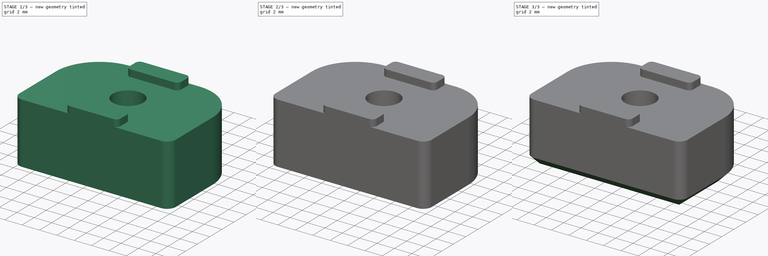
[diagram: build sequence overview — one tinted view per stage of 3, left to right]
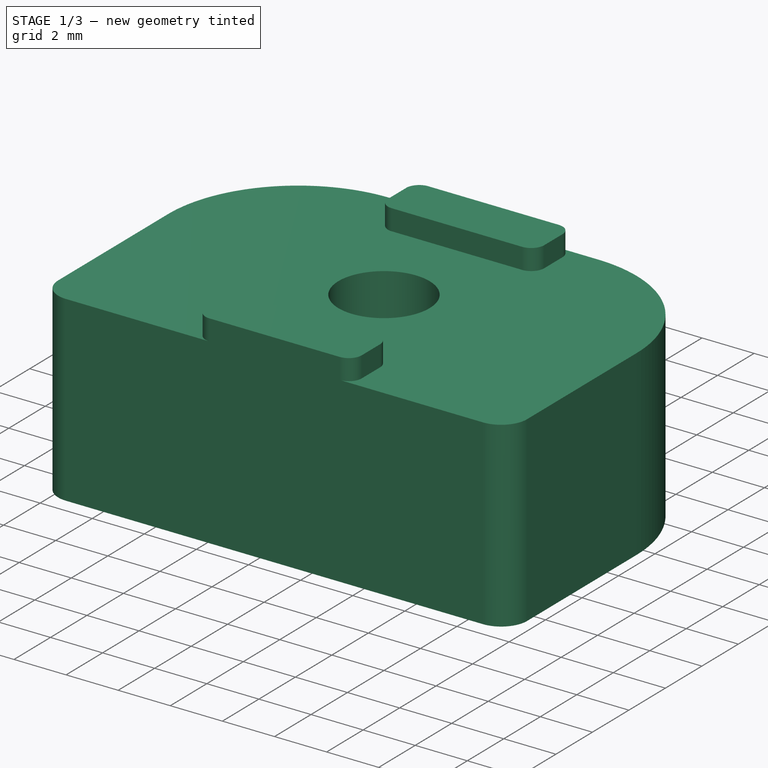
[diagram: stage 1 of 3 — iso view after this stage's code; geometry added in this stage tinted green]
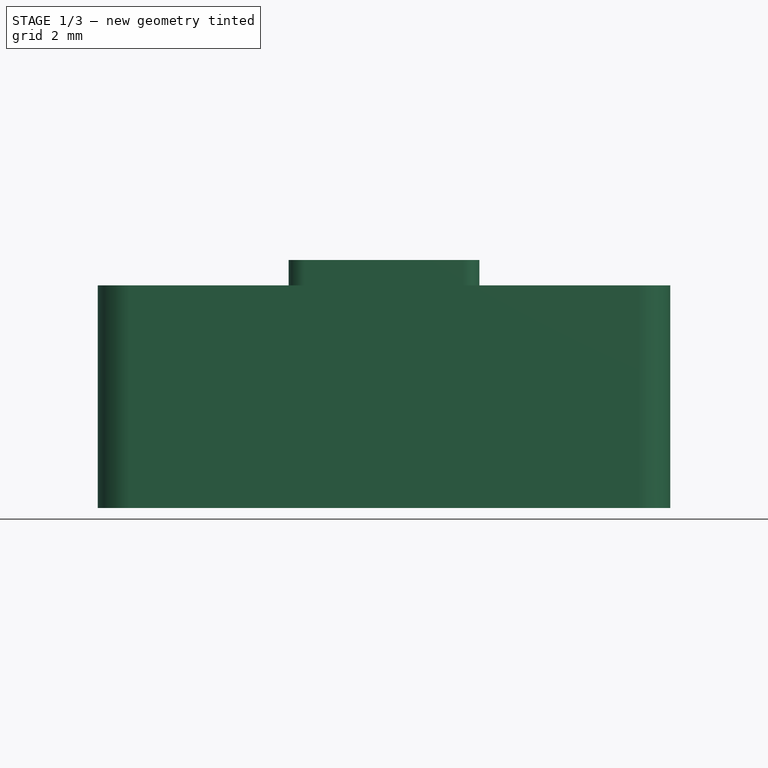
[diagram: stage 1 of 3 — front view after this stage's code; geometry added in this stage tinted green]
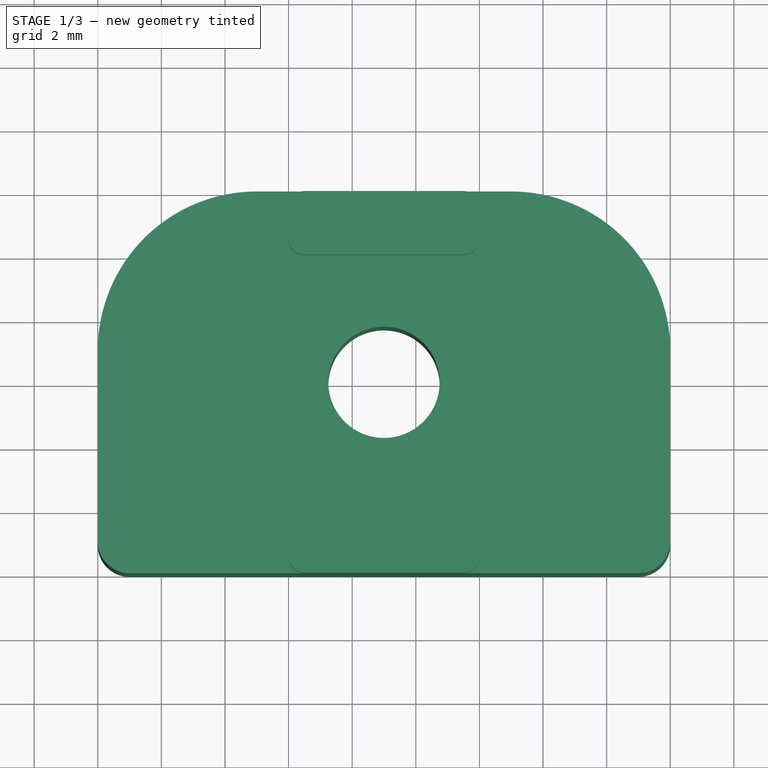
[diagram: stage 1 of 3 — top view after this stage's code; geometry added in this stage tinted green]
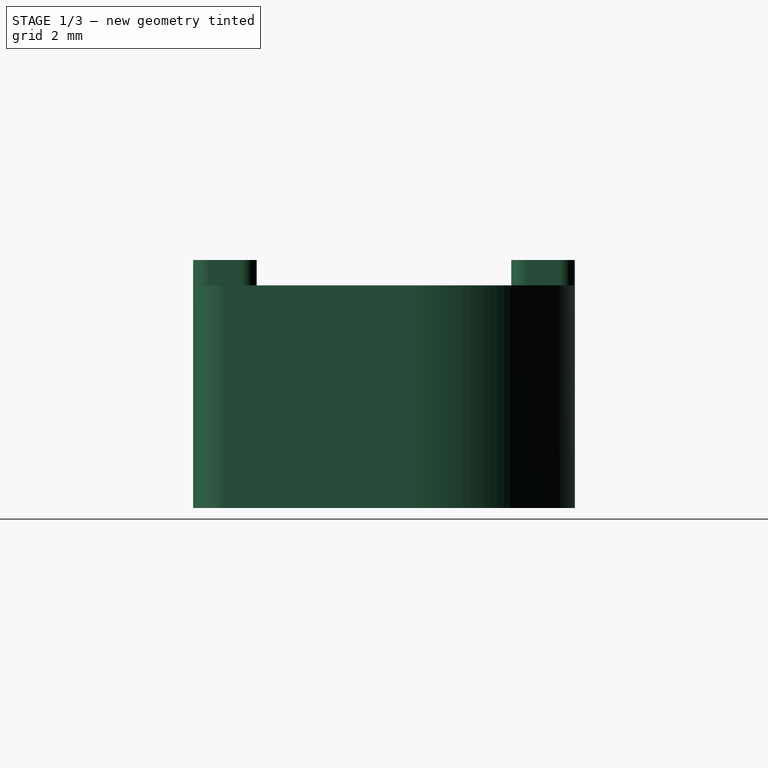
[diagram: stage 1 of 3 — right view after this stage's code; geometry added in this stage tinted green]
FCSTD DOCUMENT  (FreeCAD 1.0R39109 (Git))
Label: Endstop_MGN12
License: All rights reserved
LicenseURL: https://en.wikipedia.org/wiki/All_rights_reserved
objects: Sketcher::SketchObject×5, PartDesign::Pad×4, PartDesign::Pocket×1, PartDesign::Chamfer×1, PartDesign::Body×1
note: 29 computed .brp shape members not serialized (recipe doc carries the construction recipe); baked Part::Feature solids carry a one-line shape summary decoded from their .brp

FEATURE [Sketcher::SketchObject] Sketch
  ArcFitTolerance = 1e-06
  AttachmentSupport = -> [XY_Plane001]
  FullyConstrained = true
  MakeInternals = false
  MapMode = 5
  sketch-geometry (9):
    g0: LineSegment StartX=18 StartY=1 StartZ=0 EndX=18 EndY=7 EndZ=0
    g1: LineSegment StartX=13 StartY=12 StartZ=0 EndX=5 EndY=12 EndZ=0
    g2: LineSegment StartX=-9e-16 StartY=7 StartZ=0 EndX=0 EndY=1 EndZ=0
    g3: ArcOfCircle CenterX=5 CenterY=7 CenterZ=0 NormalX=0 NormalY=0 NormalZ=1 AngleXU=0 Radius=5 StartAngle=1.5708 EndAngle=3.14159
    g4: ArcOfCircle CenterX=13 CenterY=7 CenterZ=0 NormalX=0 NormalY=0 NormalZ=1 AngleXU=0 Radius=5 StartAngle=0 EndAngle=1.5708
    g5: ArcOfCircle CenterX=17 CenterY=1 CenterZ=0 NormalX=0 NormalY=0 NormalZ=1 AngleXU=0 Radius=1 StartAngle=4.71239 EndAngle=6.28319
    g6: ArcOfCircle CenterX=1 CenterY=1 CenterZ=0 NormalX=0 NormalY=0 NormalZ=1 AngleXU=0 Radius=1 StartAngle=3.14159 EndAngle=4.71239
    g7: Circle CenterX=9 CenterY=6 CenterZ=0 NormalX=0 NormalY=0 NormalZ=1 AngleXU=0 Radius=1.75
    g8: LineSegment StartX=1 StartY=0 StartZ=0 EndX=17 EndY=0 EndZ=0
  constraints (21):
    c: Vertical(g0)
    c: Tangent(g2,g3) = -1.5708
    c: Tangent(g1,g3) = -1.5708
    c: Tangent(g1,g4) = -1.5708
    c: Tangent(g0,g4) = -1.5708
    c: Tangent(g0,g5) = -1.5708
    c: Tangent(g2,g6) = -1.5708
    c: DistanceX(g2,g0) = 18
    c: Equal(g6,g5)
    c: Radius(g5) = 1
    c: Radius(g4) = 5
    c: Equal(g4,g3)
    c: Diameter(g7) = 3.5
    c: Distance(g7,g2) = 9
    c: Tangent(g8,g5) = -1.5708
    c: Tangent(g8,g6) = -1.5708
    c: DistanceY(g5,g1) = 12
    c: Tangent(g6,g-1) = -1.5708
    c: Tangent(g2,g-2) = 1.5708
    c: Distance(g7,g-1) = 6
    c: Horizontal(g1)
FEATURE [PartDesign::Pad] Pad
  Direction = (0,0,1)
  Length = 7
  Length2 = 10
  Profile = -> Sketch
  ReferenceAxis = -> Sketch [N_Axis]
  Refine = true
  Suppressed = false
  Type = 0
FEATURE [Sketcher::SketchObject] Sketch001
  ArcFitTolerance = 1e-06
  AttachmentSupport = -> [Pad]
  FullyConstrained = true
  MakeInternals = false
  MapMode = 5
  Placement = pos=(0,0,7) rot=(0,0,1;0rad)
  sketch-geometry (16):
    g0: LineSegment StartX=6 StartY=11.5 StartZ=0 EndX=6 EndY=10.5 EndZ=0
    g1: LineSegment StartX=6.5 StartY=10 StartZ=0 EndX=11.5 EndY=10 EndZ=0
    g2: LineSegment StartX=12 StartY=10.5 StartZ=0 EndX=12 EndY=11.5 EndZ=0
    g3: LineSegment StartX=11.5 StartY=12 StartZ=0 EndX=6.5 EndY=12 EndZ=0
    g4: LineSegment StartX=6 StartY=1.5 StartZ=0 EndX=6 EndY=0.5 EndZ=0
    g5: LineSegment StartX=6.5 StartY=0 StartZ=0 EndX=11.5 EndY=0 EndZ=0
    g6: LineSegment StartX=12 StartY=0.5 StartZ=0 EndX=12 EndY=1.5 EndZ=0
    g7: LineSegment StartX=11.5 StartY=2 StartZ=0 EndX=6.5 EndY=2 EndZ=0
    g8: ArcOfCircle CenterX=6.5 CenterY=11.5 CenterZ=0 NormalX=0 NormalY=0 NormalZ=1 AngleXU=0 Radius=0.5 StartAngle=1.5708 EndAngle=3.14159
    g9: ArcOfCircle CenterX=11.5 CenterY=11.5 CenterZ=0 NormalX=0 NormalY=0 NormalZ=1 AngleXU=0 Radius=0.5 StartAngle=1.8e-15 EndAngle=1.5708
    g10: ArcOfCircle CenterX=11.5 CenterY=10.5 CenterZ=0 NormalX=0 NormalY=0 NormalZ=1 AngleXU=0 Radius=0.5 StartAngle=4.71239 EndAngle=6.28319
    g11: ArcOfCircle CenterX=6.5 CenterY=10.5 CenterZ=0 NormalX=0 NormalY=0 NormalZ=1 AngleXU=0 Radius=0.5 StartAngle=3.14159 EndAngle=4.71239
    g12: ArcOfCircle CenterX=6.5 CenterY=1.5 CenterZ=0 NormalX=0 NormalY=0 NormalZ=1 AngleXU=0 Radius=0.5 StartAngle=1.5708 EndAngle=3.14159
    g13: ArcOfCircle CenterX=11.5 CenterY=1.5 CenterZ=0 NormalX=0 NormalY=0 NormalZ=1 AngleXU=0 Radius=0.5 StartAngle=0 EndAngle=1.5708
    g14: ArcOfCircle CenterX=11.5 CenterY=0.5 CenterZ=0 NormalX=0 NormalY=0 NormalZ=1 AngleXU=0 Radius=0.5 StartAngle=4.71239 EndAngle=6.28319
    g15: ArcOfCircle CenterX=6.5 CenterY=0.5 CenterZ=0 NormalX=0 NormalY=0 NormalZ=1 AngleXU=0 Radius=0.5 StartAngle=3.14159 EndAngle=4.71239
  constraints (39):
    c: Vertical(g0)
    c: Vertical(g2)
    c: Horizontal(g1)
    c: Horizontal(g3)
    c: Vertical(g4)
    c: Vertical(g6)
    c: Horizontal(g7)
    c: Tangent(g0,g8) = -1.5708
    c: Tangent(g3,g8) = -1.5708
    c: Tangent(g3,g9) = -1.5708
    c: Tangent(g2,g9) = -1.5708
    c: Tangent(g2,g10) = -1.5708
    c: Tangent(g1,g10) = -1.5708
    c: Tangent(g1,g11) = -1.5708
    c: Tangent(g0,g11) = -1.5708
    c: Tangent(g4,g12) = -1.5708
    c: Tangent(g7,g12) = -1.5708
    c: Tangent(g7,g13) = -1.5708
    c: Tangent(g6,g13) = -1.5708
    c: Tangent(g6,g14) = -1.5708
    c: Tangent(g5,g14) = -1.5708
    c: Tangent(g5,g15) = -1.5708
    c: Tangent(g4,g15) = -1.5708
    c: Radius(g8) = 0.5
    c: Equal(g8,g9)
    c: Equal(g9,g10)
    c: Equal(g10,g11)
    c: Equal(g11,g12)
    c: Equal(g12,g13)
    c: Equal(g13,g14)
    c: Equal(g14,g15)
    c: DistanceX(g0,g2) = 6
    c: DistanceY(g1,g3) = 2
    c: Vertical(g4,g0)
    c: Vertical(g6,g2)
    c: Equal(g2,g6)
    c: Tangent(g5,g-1) = -1.5708
    c: Distance(g4,g-2) = 6
    c: Distance(g3,g-1) = 12
FEATURE [PartDesign::Pad] Pad001
  BaseFeature = -> Pad
  Direction = (0,0,1)
  Length = 0.8
  Length2 = 10
  Profile = -> Sketch001
  ReferenceAxis = -> Sketch001 [N_Axis]
  Refine = true
  Suppressed = false
  Type = 0
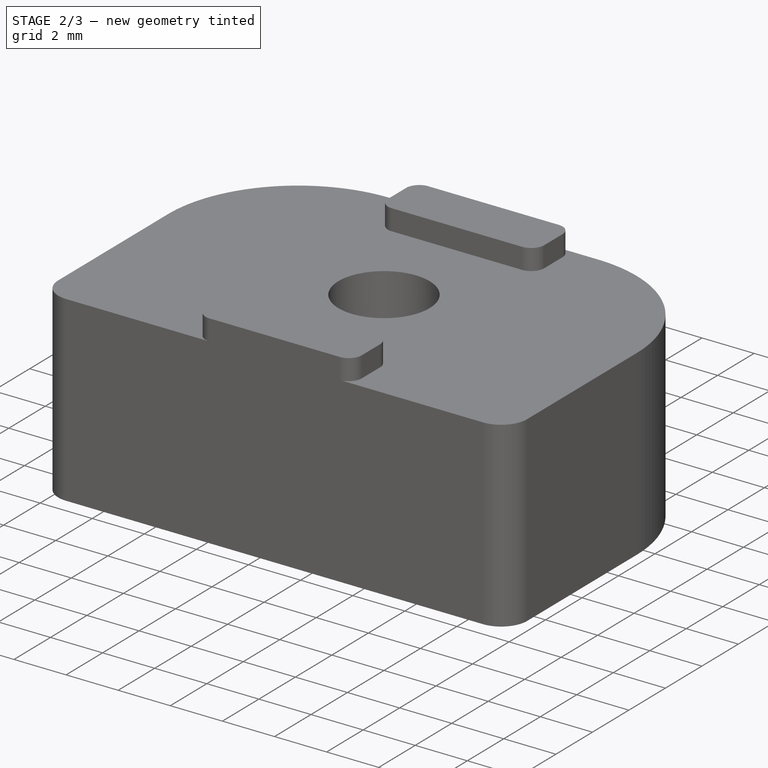
[diagram: stage 2 of 3 — iso view after this stage's code; geometry added in this stage tinted green]
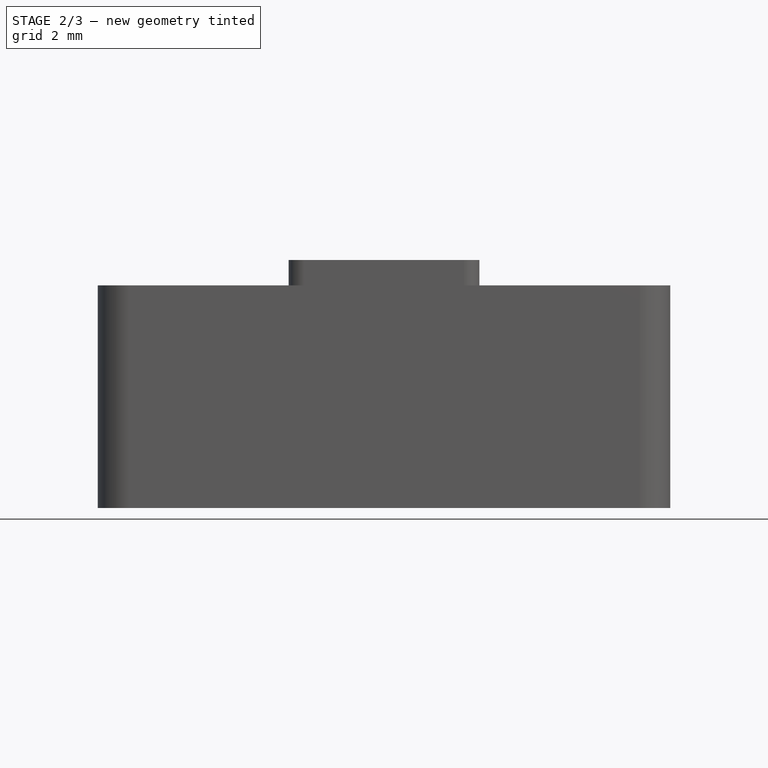
[diagram: stage 2 of 3 — front view after this stage's code; geometry added in this stage tinted green]
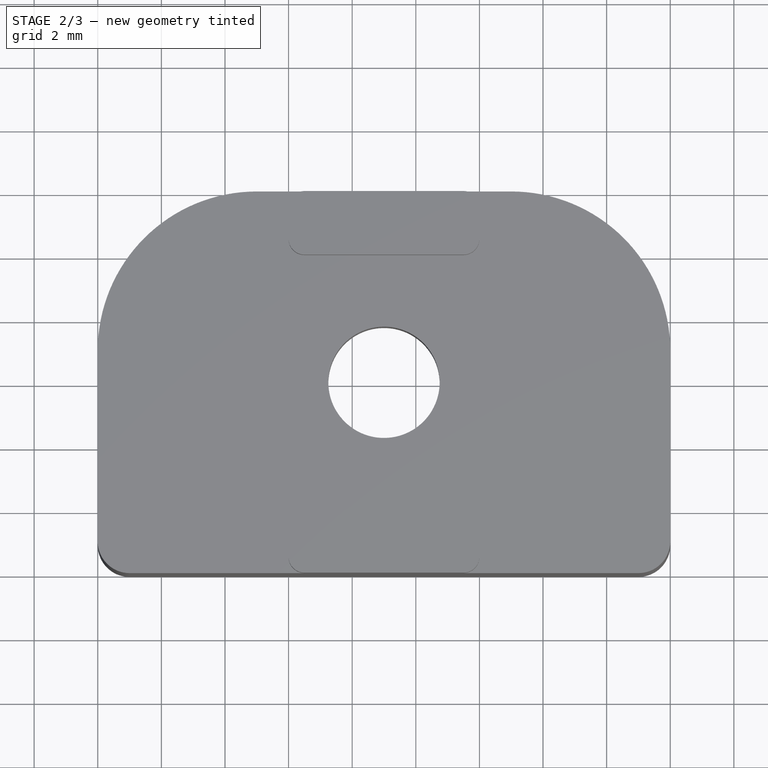
[diagram: stage 2 of 3 — top view after this stage's code; geometry added in this stage tinted green]
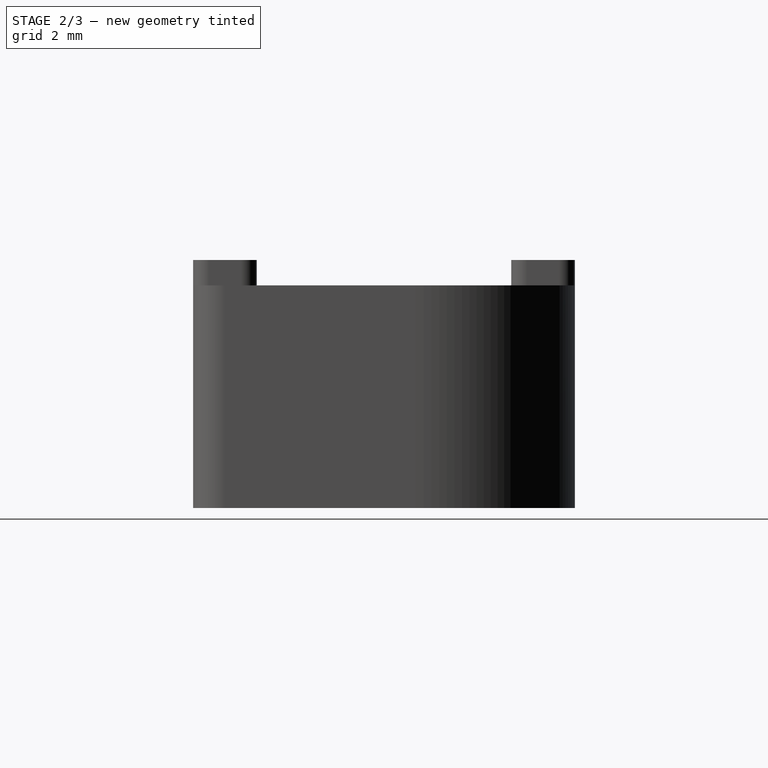
[diagram: stage 2 of 3 — right view after this stage's code; geometry added in this stage tinted green]
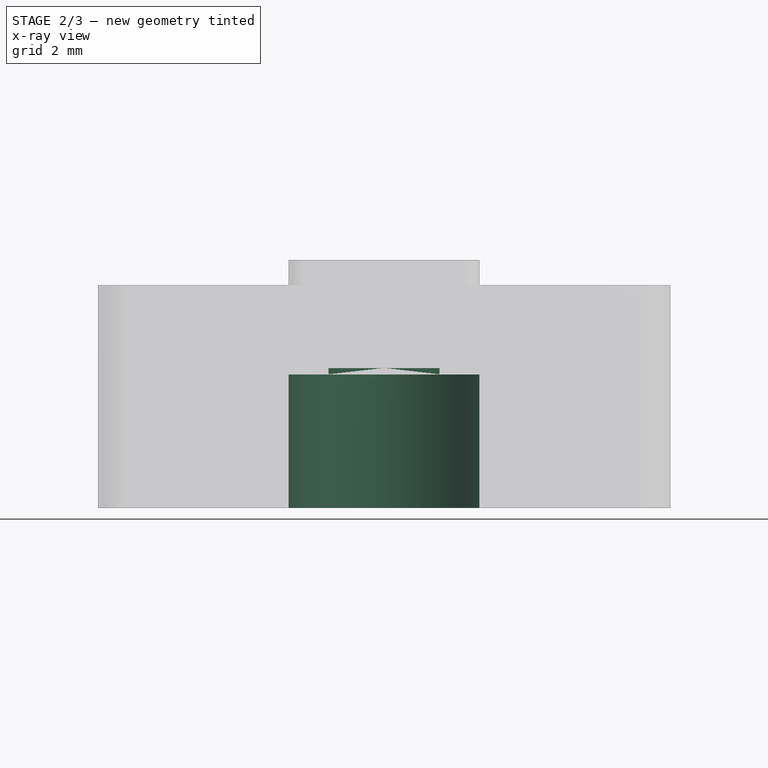
[diagram: stage 2 of 3 — x-ray composite at the front view; earlier geometry ghosted, this stage's added geometry solid]
FEATURE [Sketcher::SketchObject] Sketch002
  ArcFitTolerance = 1e-06
  AttachmentSupport = -> [Pad001]
  FullyConstrained = true
  MakeInternals = false
  MapMode = 5
  Placement = pos=(0,0,0) rot=(1,0,0;3.14159rad)
  sketch-geometry (1):
    g0: Circle CenterX=9 CenterY=-6 CenterZ=0 NormalX=0 NormalY=0 NormalZ=1 AngleXU=0 Radius=3
  constraints (3):
    c: Distance(g0,g-2) = 9
    c: Distance(g0,g-1) = 6
    c: Diameter(g0) = 6
FEATURE [PartDesign::Pocket] Pocket
  BaseFeature = -> Pad001
  Direction = (0,0,1)
  Length = 4.4
  Length2 = 5
  Profile = -> Sketch002
  ReferenceAxis = -> Sketch002 [N_Axis]
  Refine = true
  Suppressed = false
  Type = 0
FEATURE [Sketcher::SketchObject] Sketch003
  ArcFitTolerance = 1e-06
  AttachmentSupport = -> [Pocket]
  FullyConstrained = true
  MakeInternals = false
  MapMode = 5
  Placement = pos=(0,0,4.4) rot=(1,0,0;3.14159rad)
  sketch-geometry (5):
    g0: Circle CenterX=9 CenterY=-6 CenterZ=0 NormalX=0 NormalY=0 NormalZ=1 AngleXU=0 Radius=3
    g1: LineSegment StartX=7.25 StartY=-4.25 StartZ=0 EndX=7.25 EndY=-7.75 EndZ=0
    g2: LineSegment StartX=7.25 StartY=-7.75 StartZ=0 EndX=10.75 EndY=-7.75 EndZ=0
    g3: LineSegment StartX=10.75 StartY=-7.75 StartZ=0 EndX=10.75 EndY=-4.25 EndZ=0
    g4: LineSegment StartX=10.75 StartY=-4.25 StartZ=0 EndX=7.25 EndY=-4.25 EndZ=0
  constraints (14):
    c: Diameter(g0) = 6
    c: Distance(g0,g-1) = 6
    c: Distance(g0,g-2) = 9
    c: Coincident(g1,g2)
    c: Coincident(g2,g3)
    c: Coincident(g3,g4)
    c: Coincident(g4,g1)
    c: Vertical(g1)
    c: Vertical(g3)
    c: Horizontal(g2)
    c: Horizontal(g4)
    c: Symmetric(g3,g1,g0)
    c: DistanceX(g4,g4) = 3.5
    c: Equal(g4,g3)
FEATURE [PartDesign::Pad] Pad002
  BaseFeature = -> Pocket
  Direction = (0,0,-1)
  Length = 0.2
  Length2 = 10
  Profile = -> Sketch003
  ReferenceAxis = -> Sketch003 [N_Axis]
  Refine = true
  Suppressed = false
  Type = 0
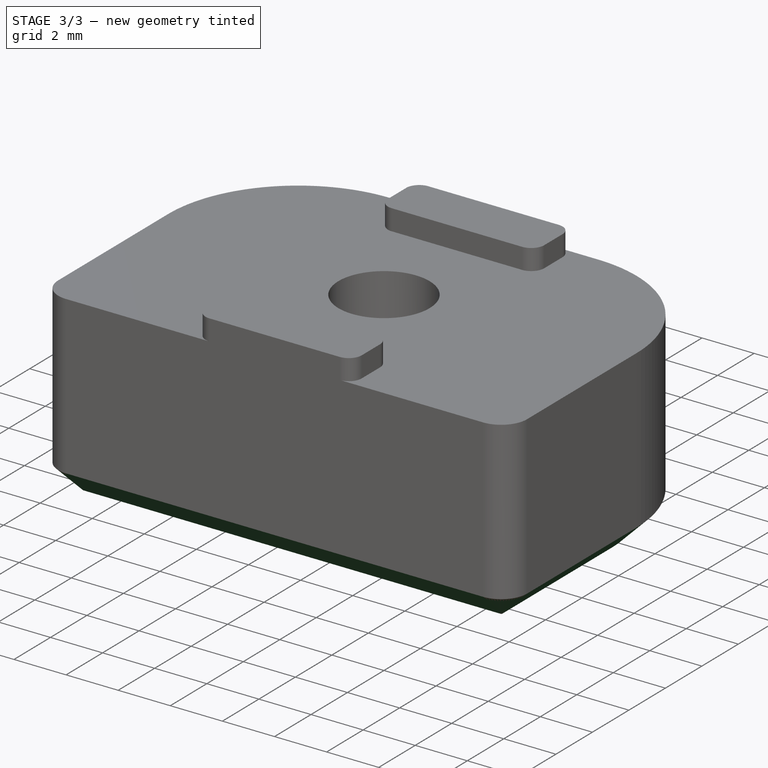
[diagram: stage 3 of 3 — iso view after this stage's code; geometry added in this stage tinted green]
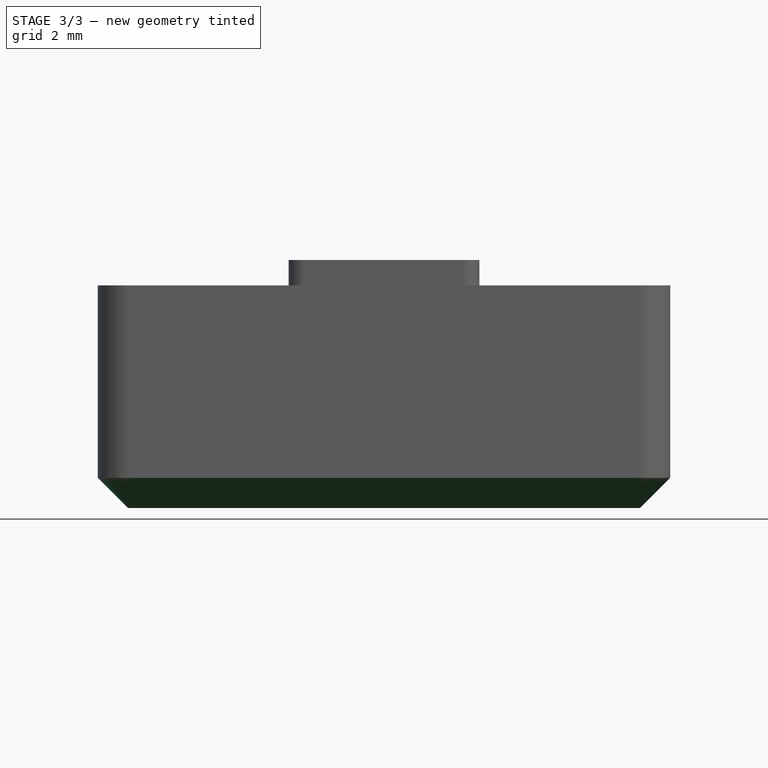
[diagram: stage 3 of 3 — front view after this stage's code; geometry added in this stage tinted green]
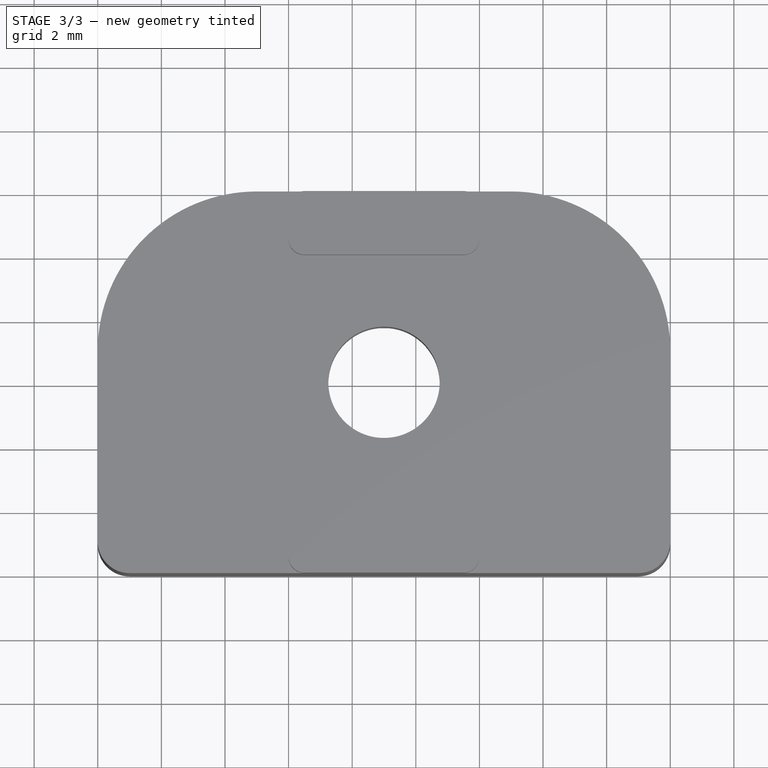
[diagram: stage 3 of 3 — top view after this stage's code; geometry added in this stage tinted green]
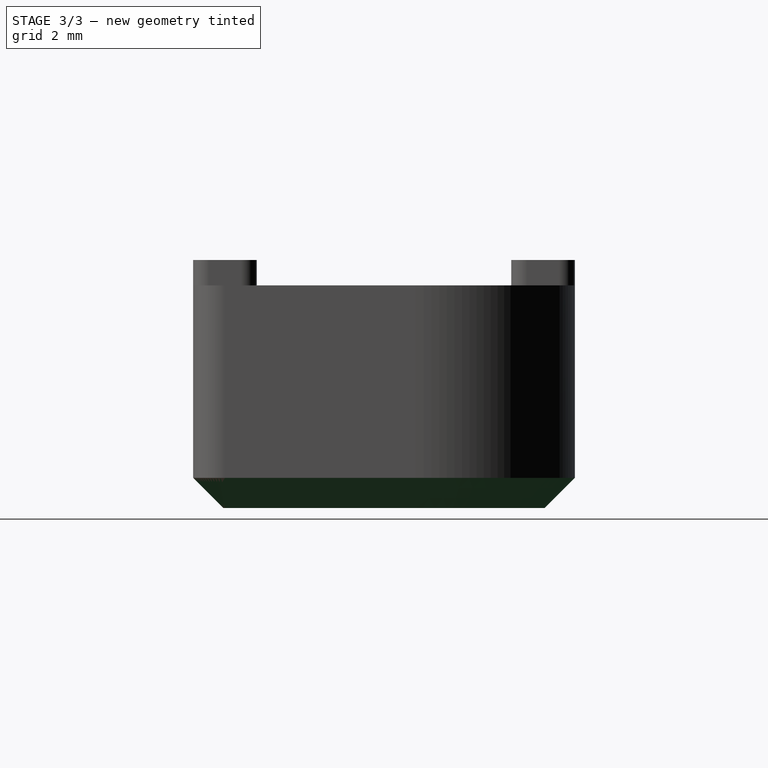
[diagram: stage 3 of 3 — right view after this stage's code; geometry added in this stage tinted green]
FEATURE [Sketcher::SketchObject] Sketch004
  ArcFitTolerance = 1e-06
  AttachmentSupport = -> [Pad002]
  FullyConstrained = true
  MakeInternals = false
  MapMode = 5
  Placement = pos=(0,0,4.2) rot=(1,0,0;3.14159rad)
  sketch-geometry (4):
    g0: ArcOfCircle CenterX=9 CenterY=-6 CenterZ=0 NormalX=0 NormalY=0 NormalZ=1 AngleXU=0 Radius=3 StartAngle=0.622827 EndAngle=2.51877
    g1: ArcOfCircle CenterX=9 CenterY=-6 CenterZ=0 NormalX=0 NormalY=0 NormalZ=1 AngleXU=0 Radius=3 StartAngle=3.76442 EndAngle=5.66036
    g2: LineSegment StartX=6.5633 StartY=-4.25 StartZ=0 EndX=11.4367 EndY=-4.25 EndZ=0
    g3: LineSegment StartX=6.5633 StartY=-7.75 StartZ=0 EndX=11.4367 EndY=-7.75 EndZ=0
  constraints (12):
    c: Coincident(g1,g0)
    c: Coincident(g2,g0)
    c: Coincident(g2,g0)
    c: Horizontal(g2)
    c: Coincident(g3,g1)
    c: Coincident(g3,g1)
    c: Horizontal(g3)
    c: Radius(g0) = 3
    c: Distance(g0,g-1) = 6
    c: Distance(g0,g-2) = 9
    c: DistanceY(g1,g0) = 3.5
    c: Symmetric(g1,g0,g0)
FEATURE [PartDesign::Pad] Pad003
  BaseFeature = -> Pad002
  Direction = (0,0,-1)
  Length = 0.2
  Length2 = 10
  Profile = -> Sketch004
  ReferenceAxis = -> Sketch004 [N_Axis]
  Refine = true
  Suppressed = false
  Type = 0
FEATURE [PartDesign::Chamfer] Chamfer
  Angle = 45
  Base = -> Pad003 [Edge13]
  BaseFeature = -> Pad003
  ChamferType = 0
  FlipDirection = false
  Refine = true
  Size = 0.95
  Size2 = 1
  SupportTransform = false
  Suppressed = false
  UseAllEdges = false
FEATURE [PartDesign::Body] Body001  label="Body"
  AllowCompound = false
  Group = -> [Sketch,Pad,Sketch001,Pad001,Sketch002,Pocket,Sketch003,Pad002,Sketch004,Pad003,Chamfer]
  Origin = -> Origin001
  Tip = -> Chamfer
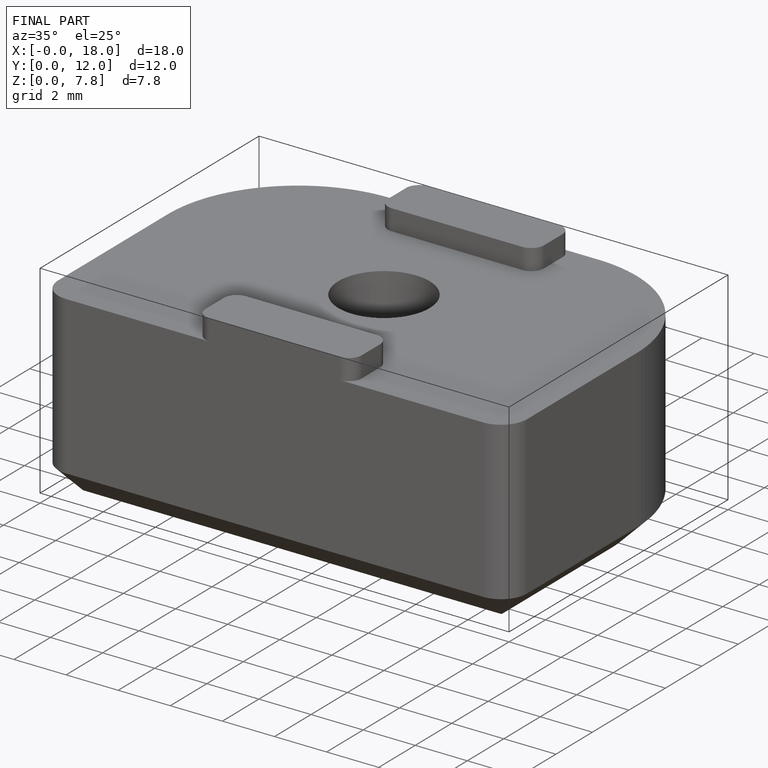
[diagram: finished part — iso view with bounding-box wireframe]
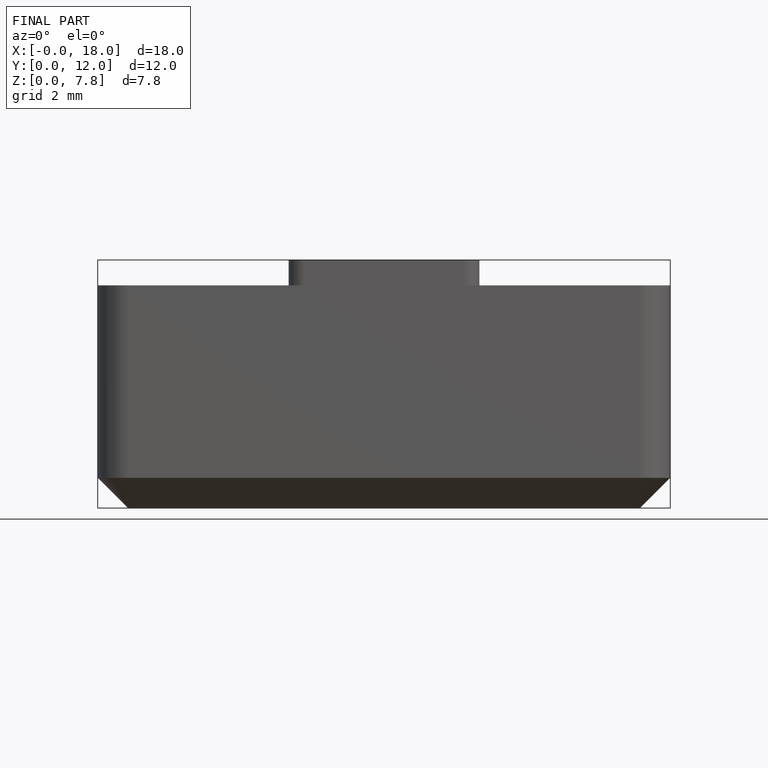
[diagram: finished part — front view with bounding-box wireframe]
